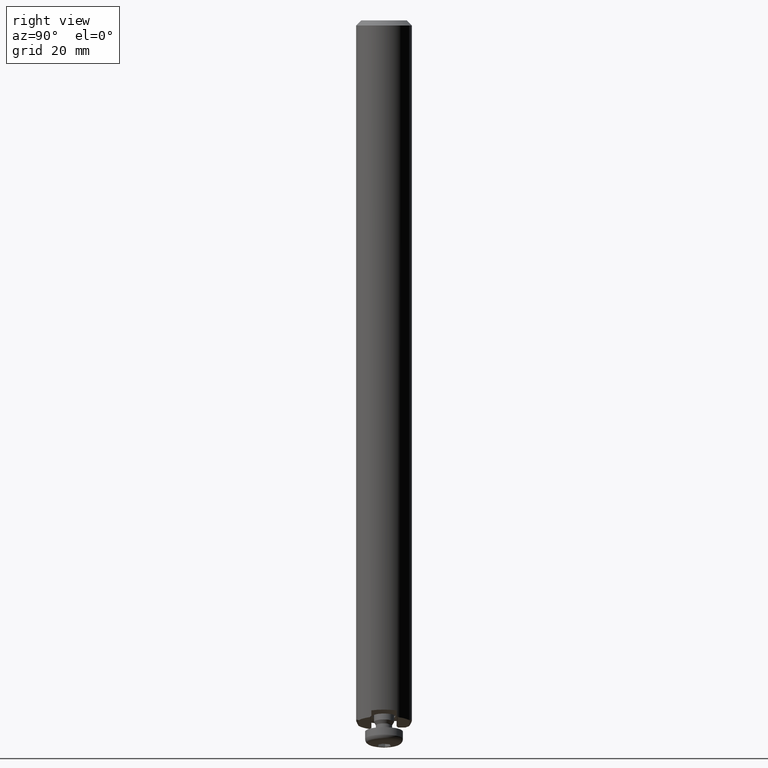
[diagram: clean part render]
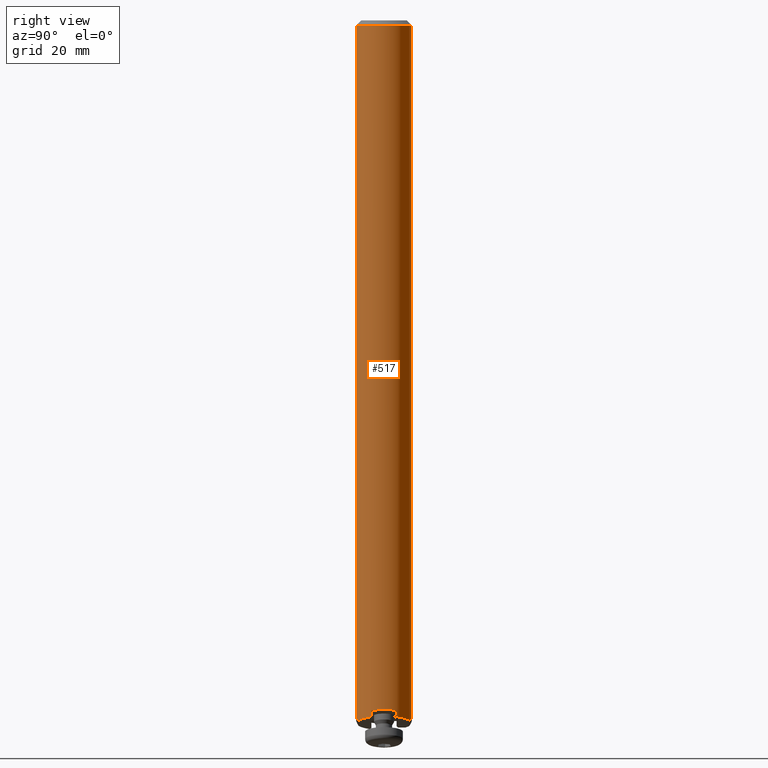
[diagram: same view with one face highlighted and labeled with its STEP entity id]
A machine part, right view. The second image highlights one B-rep face of the part: STEP entity #517.
In plain terms, the highlighted cylindrical surface (edge-blend (fillet) strip) has radius 5.5 mm, axis along (-0, -0, 1).
Its self-contained STEP definition (entity closure, byte-faithful):
#379=EDGE_CURVE('NONE',#909,#571,#1049,.T.);
#395=VERTEX_POINT('NONE',#1067);
#435=VERTEX_POINT('NONE',#1111);
#497=EDGE_CURVE('NONE',#531,#909,#1181,.T.);
#511=EDGE_CURVE('NONE',#715,#735,#1197,.T.);
#517=ADVANCED_FACE('NONE',(#1203),#1204,.T.);
#519=EDGE_CURVE('NONE',#893,#735,#1206,.T.);
#531=VERTEX_POINT('NONE',#1219);
#571=VERTEX_POINT('NONE',#1263);
#573=EDGE_CURVE('NONE',#999,#531,#1265,.T.);
#621=EDGE_CURVE('NONE',#395,#999,#1323,.T.);
#673=EDGE_CURVE('NONE',#715,#395,#1382,.T.);
#715=VERTEX_POINT('NONE',#1428);
#735=VERTEX_POINT('NONE',#1452);
#791=VERTEX_POINT('NONE',#1513);
#815=EDGE_CURVE('NONE',#855,#791,#1540,.T.);
#821=EDGE_CURVE('NONE',#921,#855,#1546,.T.);
#855=VERTEX_POINT('NONE',#1583);
#877=EDGE_CURVE('NONE',#791,#893,#1607,.T.);
#881=EDGE_CURVE('NONE',#435,#571,#1611,.T.);
#893=VERTEX_POINT('NONE',#1624);
#909=VERTEX_POINT('NONE',#1641);
#921=VERTEX_POINT('NONE',#1656);
#949=EDGE_CURVE('NONE',#435,#921,#1687,.T.);
#999=VERTEX_POINT('NONE',#1743);
#1049=(B_SPLINE_CURVE(3,(#1794,#1795,#1796,#1797),.UNSPECIFIED.,.F.,.F.)B_SPLINE_CURVE_WITH_KNOTS((4,4),(5.81132346989994,6.75504714445923),.UNSPECIFIED.)RATIONAL_B_SPLINE_CURVE((1.0,0.927149028553498,0.927149028553498,1.0))BOUNDED_CURVE()REPRESENTATION_ITEM('')GEOMETRIC_REPRESENTATION_ITEM()CURVE());
#1067=CARTESIAN_POINT('',(2.29128784747791,-5.0,1.7588663368042));
#1111=CARTESIAN_POINT('',(4.89897948556636,2.5,2.66669029229713));
#1181=LINE('',#1994,#1995);
#1197=LINE('',#2029,#2030);
#1203=FACE_OUTER_BOUND('',#2036,.T.);
#1204=CYLINDRICAL_SURFACE('',#2037,5.5);
#1206=CIRCLE('',#2040,5.5);
#1219=CARTESIAN_POINT('',(4.89897948556636,-2.5,2.66669029229713));
#1263=CARTESIAN_POINT('',(4.89897948556636,2.5,3.69730392164703));
#1265=(B_SPLINE_CURVE(3,(#2138,#2139,#2140,#2141),.UNSPECIFIED.,.F.,.F.)B_SPLINE_CURVE_WITH_KNOTS((4,4),(4.42615161482737,4.47788855314603),.UNSPECIFIED.)RATIONAL_B_SPLINE_CURVE((1.0,0.999776953206362,0.999776953206362,1.0))BOUNDED_CURVE()REPRESENTATION_ITEM('')GEOMETRIC_REPRESENTATION_ITEM()CURVE());
#1323=(B_SPLINE_CURVE(3,(#2224,#2225,#2226,#2227),.UNSPECIFIED.,.F.,.F.)B_SPLINE_CURVE_WITH_KNOTS((4,4),(5.14208864653611,5.75958653158129),.UNSPECIFIED.)RATIONAL_B_SPLINE_CURVE((1.0,0.968476313602969,0.968476313602969,1.0))BOUNDED_CURVE()REPRESENTATION_ITEM('')GEOMETRIC_REPRESENTATION_ITEM()CURVE());
#1382=(B_SPLINE_CURVE(3,(#2335,#2336,#2337,#2338),.UNSPECIFIED.,.F.,.F.)B_SPLINE_CURVE_WITH_KNOTS((4,4),(6.04582389713861,6.47552356329003),.UNSPECIFIED.)RATIONAL_B_SPLINE_CURVE((1.0,0.984672280612263,0.984672280612263,1.0))BOUNDED_CURVE()REPRESENTATION_ITEM('')GEOMETRIC_REPRESENTATION_ITEM()CURVE());
#1428=CARTESIAN_POINT('',(-6.73533494602307E-016,-5.5,1.70289092852863));
#1452=CARTESIAN_POINT('',(-6.73533494602307E-016,-5.5,139.0));
#1513=CARTESIAN_POINT('',(0.0,5.5,1.70289092852863));
#1540=(B_SPLINE_CURVE(3,(#2643,#2644,#2645,#2646),.UNSPECIFIED.,.F.,.F.)B_SPLINE_CURVE_WITH_KNOTS((4,4),(6.09084705106914,6.52054671722057),.UNSPECIFIED.)RATIONAL_B_SPLINE_CURVE((1.0,0.984672280612263,0.984672280612263,1.0))BOUNDED_CURVE()REPRESENTATION_ITEM('')GEOMETRIC_REPRESENTATION_ITEM()CURVE());
#1546=(B_SPLINE_CURVE(3,(#2660,#2661,#2662,#2663),.UNSPECIFIED.,.F.,.F.)B_SPLINE_CURVE_WITH_KNOTS((4,4),(0.523598775598299,1.14109666064347),.UNSPECIFIED.)RATIONAL_B_SPLINE_CURVE((1.0,0.968476313602969,0.968476313602969,1.0))BOUNDED_CURVE()REPRESENTATION_ITEM('')GEOMETRIC_REPRESENTATION_ITEM()CURVE());
#1583=CARTESIAN_POINT('',(2.29128784747792,5.0,1.7588663368042));
#1607=LINE('',#2758,#2759);
#1611=LINE('',#2764,#2765);
#1624=CARTESIAN_POINT('',(0.0,5.5,139.0));
#1641=CARTESIAN_POINT('',(4.89897948556636,-2.5,3.69730392164703));
#1656=CARTESIAN_POINT('',(4.76313972081441,2.75,2.37516822770737));
#1687=(B_SPLINE_CURVE(3,(#2862,#2863,#2864,#2865),.UNSPECIFIED.,.F.,.F.)B_SPLINE_CURVE_WITH_KNOTS((4,4),(1.80529675403356,1.85703369235222),.UNSPECIFIED.)RATIONAL_B_SPLINE_CURVE((1.0,0.999776953206362,0.999776953206362,1.0))BOUNDED_CURVE()REPRESENTATION_ITEM('')GEOMETRIC_REPRESENTATION_ITEM()CURVE());
#1743=CARTESIAN_POINT('',(4.76313972081442,-2.75,2.37516822770737));
#1794=CARTESIAN_POINT('',(4.89897948556636,-2.5,3.69730392164703));
#1795=CARTESIAN_POINT('',(5.71608195156117,-0.898812712594295,3.90103044761176));
#1796=CARTESIAN_POINT('',(5.71608195156117,0.898812712594293,3.90103044761176));
#1797=CARTESIAN_POINT('',(4.89897948556636,2.5,3.69730392164703));
#1994=CARTESIAN_POINT('',(4.89897948556636,-2.5,12.8162800982162));
#1995=VECTOR('',#3182,1000.0);
#2029=CARTESIAN_POINT('',(-6.73533494602307E-016,-5.5,12.8162800982162));
#2030=VECTOR('',#3202,1000.0);
#2036=EDGE_LOOP('',(#3204,#3205,#3206,#3207,#3208,#3209,#3210,#3211,#3212,#3213,#3214,#3215));
#2037=AXIS2_PLACEMENT_3D('',#3216,#3217,#3218);
#2040=AXIS2_PLACEMENT_3D('',#3219,#3220,#3221);
#2138=CARTESIAN_POINT('',(4.76313972081442,-2.75,2.37516822770737));
#2139=CARTESIAN_POINT('',(4.81057053772432,-2.66784741526754,2.47166163207233));
#2140=CARTESIAN_POINT('',(4.8558605611028,-2.58449549055466,2.56885733279166));
#2141=CARTESIAN_POINT('',(4.89897948556636,-2.5,2.66669029229713));
#2224=CARTESIAN_POINT('',(2.29128784747791,-5.0,1.7588663368042));
#2225=CARTESIAN_POINT('',(3.3371470998663,-4.52072708096603,2.01962833545726));
#2226=CARTESIAN_POINT('',(4.1879171320008,-3.74631474948648,2.23174912844819));
#2227=CARTESIAN_POINT('',(4.76313972081442,-2.75,2.37516822770737));
#2335=CARTESIAN_POINT('',(-6.73533494602307E-016,-5.5,1.70289092852863));
#2336=CARTESIAN_POINT('',(0.79390470856404,-5.5,1.9008336039627));
#2337=CARTESIAN_POINT('',(1.56955629423788,-5.33073894741606,1.91978251700978));
#2338=CARTESIAN_POINT('',(2.29128784747791,-5.0,1.7588663368042));
#2643=CARTESIAN_POINT('',(2.29128784747792,5.0,1.7588663368042));
#2644=CARTESIAN_POINT('',(1.56955629423788,5.33073894741606,1.91978251700978));
#2645=CARTESIAN_POINT('',(0.793904708564042,5.5,1.9008336039627));
#2646=CARTESIAN_POINT('',(0.0,5.5,1.70289092852863));
#2660=CARTESIAN_POINT('',(4.76313972081441,2.75,2.37516822770737));
#2661=CARTESIAN_POINT('',(4.1879171320008,3.74631474948648,2.23174912844819));
#2662=CARTESIAN_POINT('',(3.3371470998663,4.52072708096603,2.01962833545726));
#2663=CARTESIAN_POINT('',(2.29128784747792,5.0,1.7588663368042));
#2758=CARTESIAN_POINT('',(0.0,5.5,12.8162800982162));
#2759=VECTOR('',#3679,1000.0);
#2764=CARTESIAN_POINT('',(4.89897948556636,2.5,12.8162800982162));
#2765=VECTOR('',#3680,1000.0);
#2862=CARTESIAN_POINT('',(4.89897948556636,2.5,2.66669029229713));
#2863=CARTESIAN_POINT('',(4.8558605611028,2.58449549055466,2.56885733279166));
#2864=CARTESIAN_POINT('',(4.81057053772432,2.66784741526754,2.47166163207233));
#2865=CARTESIAN_POINT('',(4.76313972081441,2.75,2.37516822770737));
#3182=DIRECTION('',(0.0,-0.0,1.0));
#3202=DIRECTION('',(0.0,-0.0,1.0));
#3204=ORIENTED_EDGE('',*,*,#511,.F.);
#3205=ORIENTED_EDGE('',*,*,#673,.T.);
#3206=ORIENTED_EDGE('',*,*,#621,.T.);
#3207=ORIENTED_EDGE('',*,*,#573,.T.);
#3208=ORIENTED_EDGE('',*,*,#497,.T.);
#3209=ORIENTED_EDGE('',*,*,#379,.T.);
#3210=ORIENTED_EDGE('',*,*,#881,.F.);
#3211=ORIENTED_EDGE('',*,*,#949,.T.);
#3212=ORIENTED_EDGE('',*,*,#821,.T.);
#3213=ORIENTED_EDGE('',*,*,#815,.T.);
#3214=ORIENTED_EDGE('',*,*,#877,.T.);
#3215=ORIENTED_EDGE('',*,*,#519,.T.);
#3216=CARTESIAN_POINT('',(0.0,0.0,12.8162800982162));
#3217=DIRECTION('',(-0.0,-0.0,1.0));
#3218=DIRECTION('',(0.0,1.0,0.0));
#3219=CARTESIAN_POINT('',(0.0,0.0,139.0));
#3220=DIRECTION('',(0.0,0.0,-1.0));
#3221=DIRECTION('',(0.0,-1.0,0.0));
#3679=DIRECTION('',(0.0,-0.0,1.0));
#3680=DIRECTION('',(0.0,-0.0,1.0));